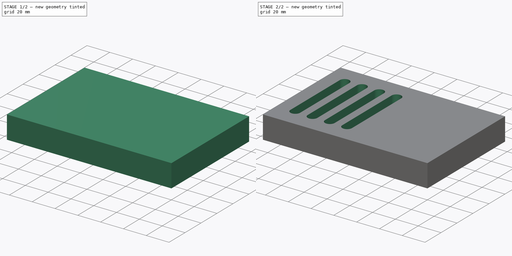
[diagram: build sequence overview — one tinted view per stage of 2, left to right]
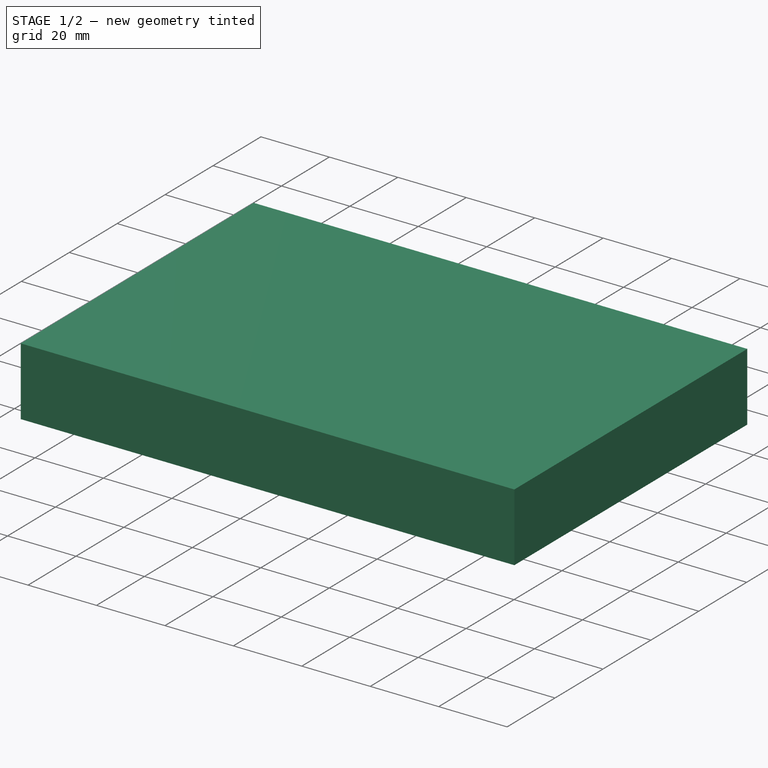
[diagram: stage 1 of 2 — iso view after this stage's code; geometry added in this stage tinted green]
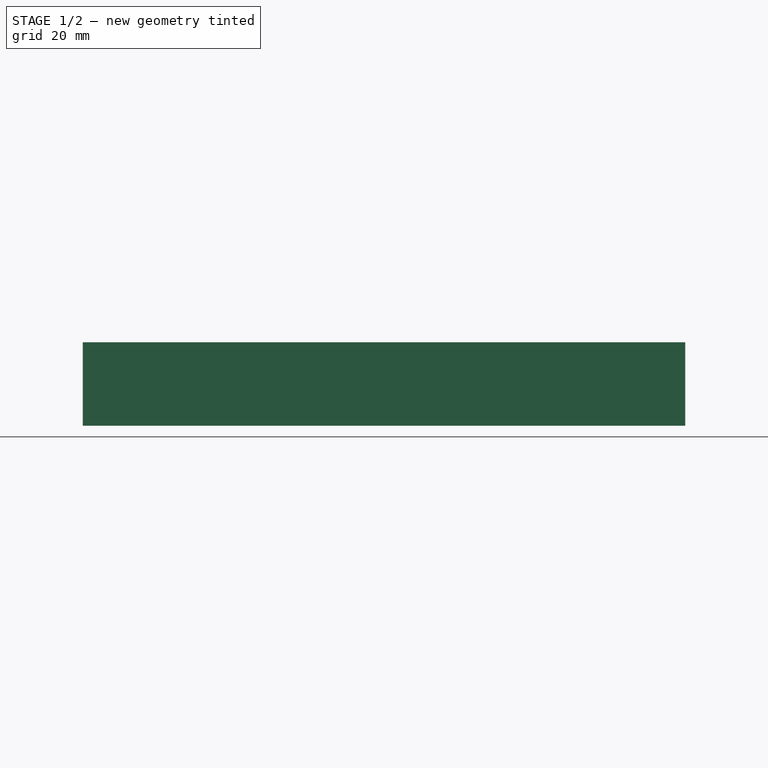
[diagram: stage 1 of 2 — front view after this stage's code; geometry added in this stage tinted green]
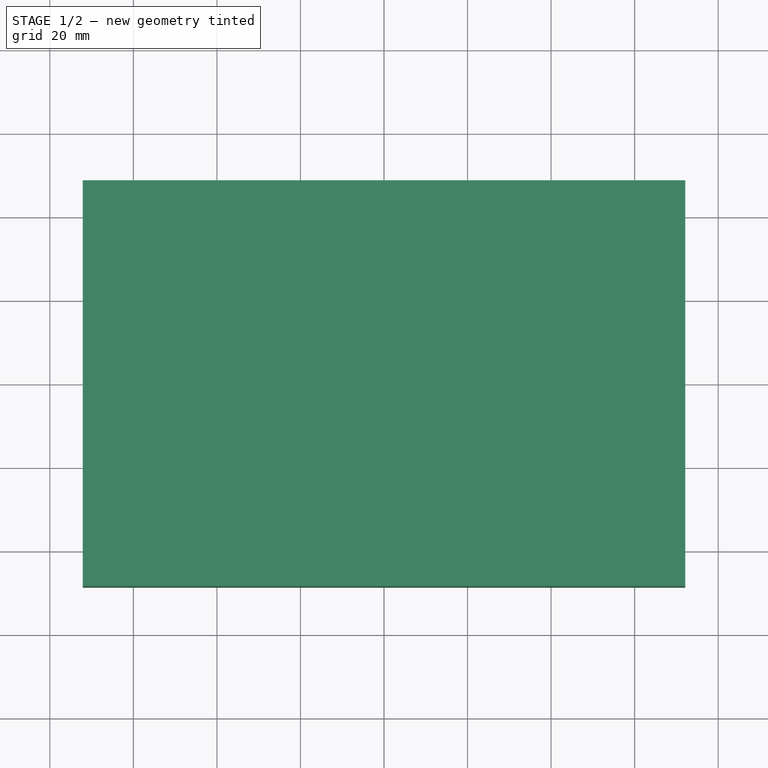
[diagram: stage 1 of 2 — top view after this stage's code; geometry added in this stage tinted green]
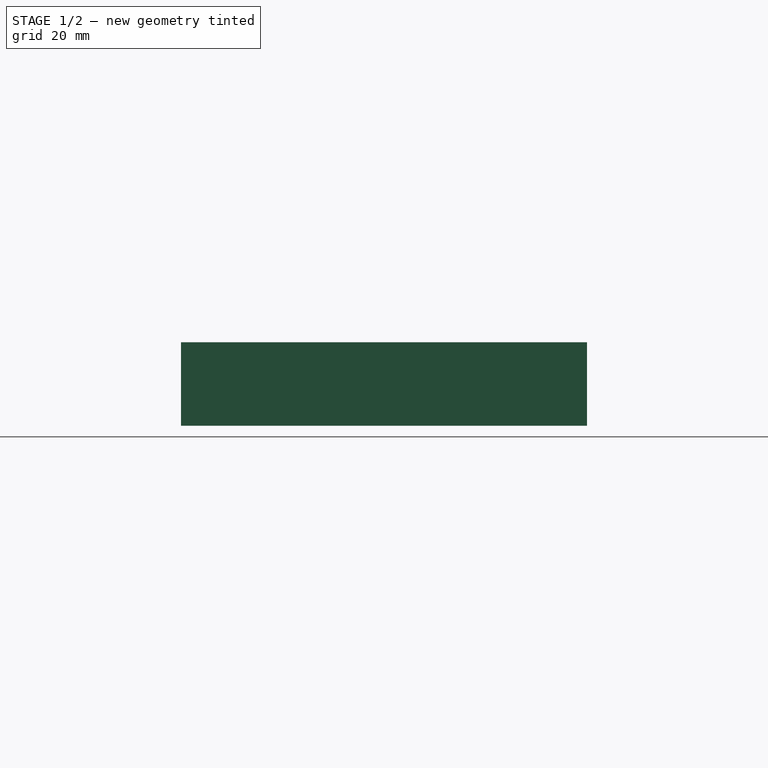
[diagram: stage 1 of 2 — right view after this stage's code; geometry added in this stage tinted green]
FCSTD DOCUMENT  (FreeCAD 0.20R29177 (Git))
Label: t5_t7_docklingstation
License: All rights reserved
LicenseURL: http://en.wikipedia.org/wiki/All_rights_reserved
objects: Sketcher::SketchObject×2, PartDesign::Pad×1, PartDesign::Pocket×1, PartDesign::Body×1
note: 7 computed .brp shape members not serialized (recipe doc carries the construction recipe); baked Part::Feature solids carry a one-line shape summary decoded from their .brp

FEATURE [Sketcher::SketchObject] Sketch
  FullyConstrained = false
  MapMode = 5
  Support = -> [XY_Plane]
  sketch-geometry (4):
    g0: LineSegment StartX=-72.1271 StartY=48.6104 StartZ=0 EndX=72.1271 EndY=48.6104 EndZ=0
    g1: LineSegment StartX=72.1271 StartY=48.6104 StartZ=0 EndX=72.1271 EndY=-48.6104 EndZ=0
    g2: LineSegment StartX=72.1271 StartY=-48.6104 StartZ=0 EndX=-72.1271 EndY=-48.6104 EndZ=0
    g3: LineSegment StartX=-72.1271 StartY=-48.6104 StartZ=0 EndX=-72.1271 EndY=48.6104 EndZ=0
  constraints (8):
    c: Coincident(g0,g1)
    c: Coincident(g1,g2)
    c: Coincident(g2,g3)
    c: Coincident(g3,g0)
    c: Horizontal(g2)
    c: Vertical(g3)
    c: Symmetric(g0,g0,g-2)
    c: Symmetric(g0,g1,g-1)
FEATURE [Sketcher::SketchObject] Sketch001
  AttachmentOffset = pos=(0,0,20) rot=(0,0,1;0rad)
  ExternalGeometry = -> [Sketch]
  FullyConstrained = false
  MapMode = 5
  Placement = pos=(0,0,20) rot=(0,0,1;0rad)
  Support = -> [XY_Plane]
  sketch-geometry (30):
    g0: ArcOfCircle CenterX=-10.7009 CenterY=30.875 CenterZ=0 NormalX=0 NormalY=0 NormalZ=1 AngleXU=0 Radius=4.25 StartAngle=1e-16 EndAngle=3.14159
    g1: ArcOfCircle CenterX=-10.7009 CenterY=-30.875 CenterZ=0 NormalX=0 NormalY=0 NormalZ=1 AngleXU=0 Radius=4.25 StartAngle=3.14159 EndAngle=6.28319
    g2: LineSegment StartX=-14.9509 StartY=30.875 StartZ=0 EndX=-14.9509 EndY=-30.875 EndZ=0
    g3: LineSegment StartX=-6.45088 StartY=-30.875 StartZ=0 EndX=-6.45088 EndY=30.875 EndZ=0
    g4: ArcOfCircle CenterX=-25.8509 CenterY=30.875 CenterZ=0 NormalX=0 NormalY=0 NormalZ=1 AngleXU=0 Radius=4.25 StartAngle=0 EndAngle=3.14159
    g5: ArcOfCircle CenterX=-25.8509 CenterY=-30.875 CenterZ=0 NormalX=0 NormalY=0 NormalZ=1 AngleXU=0 Radius=4.25 StartAngle=3.14159 EndAngle=6.28319
    g6: LineSegment StartX=-30.1009 StartY=30.875 StartZ=0 EndX=-30.1009 EndY=-30.875 EndZ=0
    g7: LineSegment StartX=-21.6009 StartY=-30.875 StartZ=0 EndX=-21.6009 EndY=30.875 EndZ=0
    g8: ArcOfCircle CenterX=-41.0009 CenterY=30.875 CenterZ=0 NormalX=0 NormalY=0 NormalZ=1 AngleXU=0 Radius=4.25 StartAngle=0 EndAngle=3.14159
    g9: ArcOfCircle CenterX=-41.0009 CenterY=-30.875 CenterZ=0 NormalX=0 NormalY=0 NormalZ=1 AngleXU=0 Radius=4.25 StartAngle=3.14159 EndAngle=6.28319
    g10: LineSegment StartX=-45.2509 StartY=30.875 StartZ=0 EndX=-45.2509 EndY=-30.875 EndZ=0
    g11: LineSegment StartX=-36.7509 StartY=-30.875 StartZ=0 EndX=-36.7509 EndY=30.875 EndZ=0
    g12: ArcOfCircle CenterX=-56.1509 CenterY=30.875 CenterZ=0 NormalX=0 NormalY=0 NormalZ=1 AngleXU=0 Radius=4.25 StartAngle=0 EndAngle=3.14159
    g13: ArcOfCircle CenterX=-56.1509 CenterY=-30.875 CenterZ=0 NormalX=0 NormalY=0 NormalZ=1 AngleXU=0 Radius=4.25 StartAngle=3.14159 EndAngle=6.28319
    g14: LineSegment StartX=-60.4009 StartY=30.875 StartZ=0 EndX=-60.4009 EndY=-30.875 EndZ=0
    g15: LineSegment StartX=-51.9009 StartY=-30.875 StartZ=0 EndX=-51.9009 EndY=30.875 EndZ=0
    g16: LineSegment StartX=-6.45088 StartY=30.875 StartZ=0 EndX=-14.9509 EndY=30.875 EndZ=0
    g17: LineSegment StartX=-21.6009 StartY=30.875 StartZ=0 EndX=-30.1009 EndY=30.875 EndZ=0
    g18: LineSegment StartX=-36.7509 StartY=30.875 StartZ=0 EndX=-45.2509 EndY=30.875 EndZ=0
    g19: LineSegment StartX=-51.9009 StartY=30.875 StartZ=0 EndX=-60.4009 EndY=30.875 EndZ=0
    g20: LineSegment StartX=-25.8509 StartY=30.875 StartZ=0 EndX=-25.8509 EndY=48.6104 EndZ=0
    g21: LineSegment StartX=-41.0009 StartY=30.875 StartZ=0 EndX=-41.0009 EndY=48.6104 EndZ=0
    g22: LineSegment StartX=-56.1509 StartY=30.875 StartZ=0 EndX=-56.1509 EndY=48.6104 EndZ=0
    g23: LineSegment StartX=-51.9009 StartY=30.875 StartZ=0 EndX=-45.2509 EndY=30.875 EndZ=0
    g24: LineSegment StartX=-36.7509 StartY=30.875 StartZ=0 EndX=-30.1009 EndY=30.875 EndZ=0
    g25: LineSegment StartX=-21.6009 StartY=30.875 StartZ=0 EndX=-14.9509 EndY=30.875 EndZ=0
    g26: LineSegment StartX=-10.7009 StartY=-30.875 StartZ=0 EndX=-10.7009 EndY=-48.6104 EndZ=0
    g27: LineSegment StartX=-10.7009 StartY=30.875 StartZ=0 EndX=-10.7009 EndY=48.6104 EndZ=0
    g28: GeomPoint X=-10.7009 Y=30.875 Z=0
    g29: GeomPoint X=-10.7009 Y=-26.625 Z=0
  constraints (71):
    c: Tangent(g0,g2) = -1.5708
    c: Tangent(g2,g1) = -1.5708
    c: Tangent(g1,g3) = -1.5708
    c: Tangent(g3,g0) = -1.5708
    c: Equal(g0,g1)
    c: Vertical(g2)
    c: DistanceX(g0,g0) = 8.5
    c: Tangent(g4,g6) = -1.5708
    c: Tangent(g6,g5) = -1.5708
    c: Tangent(g5,g7) = -1.5708
    c: Tangent(g7,g4) = -1.5708
    c: Equal(g4,g5)
    c: Vertical(g6)
    c: Tangent(g8,g10) = -1.5708
    c: Tangent(g10,g9) = -1.5708
    c: Tangent(g9,g11) = -1.5708
    c: Tangent(g11,g8) = -1.5708
    c: Equal(g8,g9)
    c: Vertical(g10)
    c: Tangent(g12,g14) = -1.5708
    c: Tangent(g14,g13) = -1.5708
    c: Tangent(g13,g15) = -1.5708
    c: Tangent(g15,g12) = -1.5708
    c: Equal(g12,g13)
    c: Vertical(g14)
    c: Coincident(g16,g0)
    c: Coincident(g16,g0)
    c: Coincident(g17,g4)
    c: Coincident(g17,g4)
    c: Coincident(g18,g8)
    c: Coincident(g18,g8)
    c: Coincident(g19,g12)
    c: Coincident(g19,g12)
    c: Equal(g16,g17)
    c: Equal(g17,g18)
    c: Equal(g18,g19)
    c: Coincident(g20,g4)
    c: PointOnObject(g20,g-3)
    c: Vertical(g20)
    c: Coincident(g21,g8)
    c: Vertical(g21)
    c: Coincident(g22,g12)
    c: PointOnObject(g22,g-3)
    c: Vertical(g22)
    c: Equal(g20,g21)
    c: Equal(g21,g22)
    c: Equal(g7,g11)
    c: Equal(g11,g15)
    c: Equal(g15,g3)
    c: Coincident(g23,g12)
    c: Coincident(g23,g8)
    c: Horizontal(g23)
    c: Coincident(g24,g8)
    c: Coincident(g24,g4)
    c: Coincident(g25,g4)
    c: Coincident(g25,g0)
    c: Equal(g23,g24)
    c: Equal(g24,g25)
    c: DistanceX(g25,g25) = 6.65
    c: Coincident(g26,g1)
    c: PointOnObject(g26,g-4)
    c: Vertical(g26)
    c: Coincident(g27,g0)
    c: PointOnObject(g27,g-3)
    c: Vertical(g27)
    c: Equal(g27,g26)
    c: Horizontal(g25)
    c: PointOnObject(g29,g1)
    c: PointOnObject(g29,g26)
    c: DistanceY(g29,g28) = 57.5
    c: Coincident(g28,g0)
FEATURE [PartDesign::Pad] Pad
  Direction = (0,0,1)
  Length = 20
  Length2 = 10
  Profile = -> Sketch
  ReferenceAxis = -> Sketch [N_Axis]
  Refine = true
  Type = 0
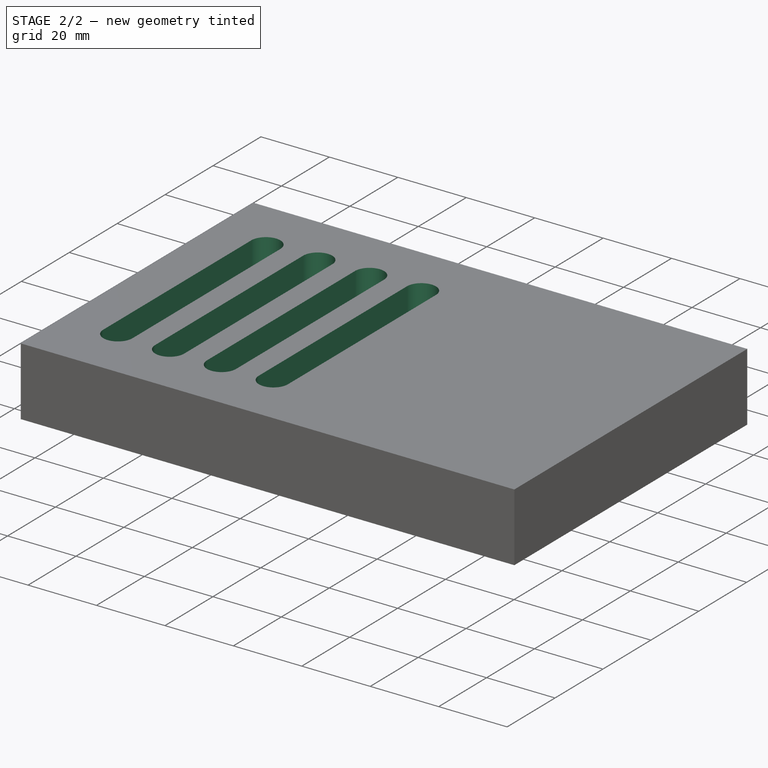
[diagram: stage 2 of 2 — iso view after this stage's code; geometry added in this stage tinted green]
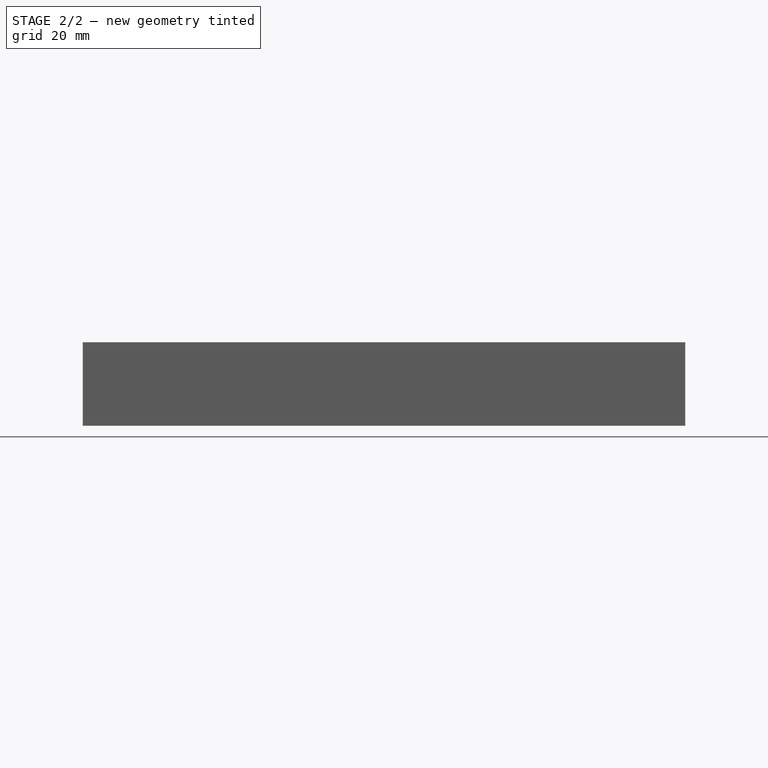
[diagram: stage 2 of 2 — front view after this stage's code; geometry added in this stage tinted green]
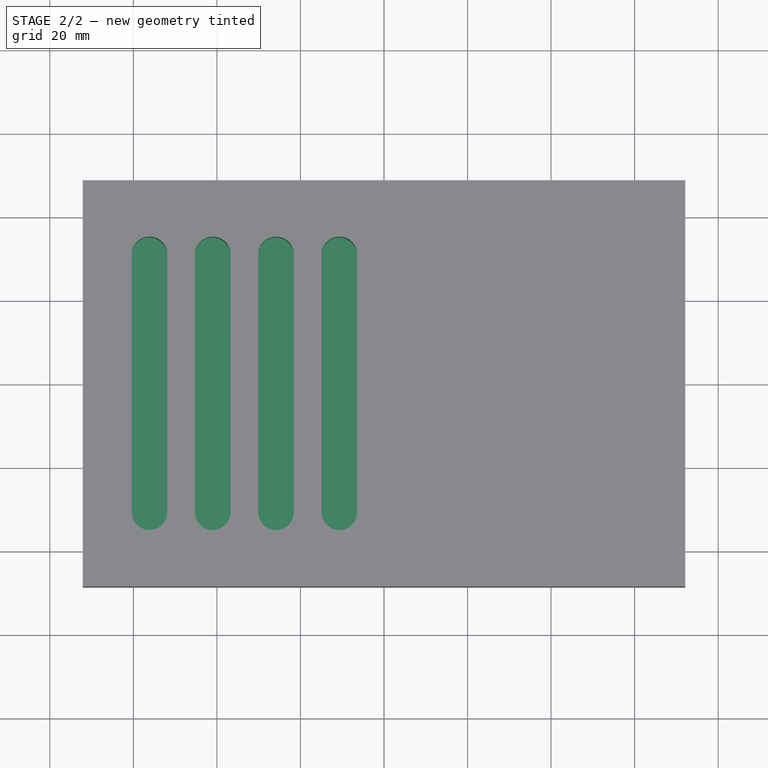
[diagram: stage 2 of 2 — top view after this stage's code; geometry added in this stage tinted green]
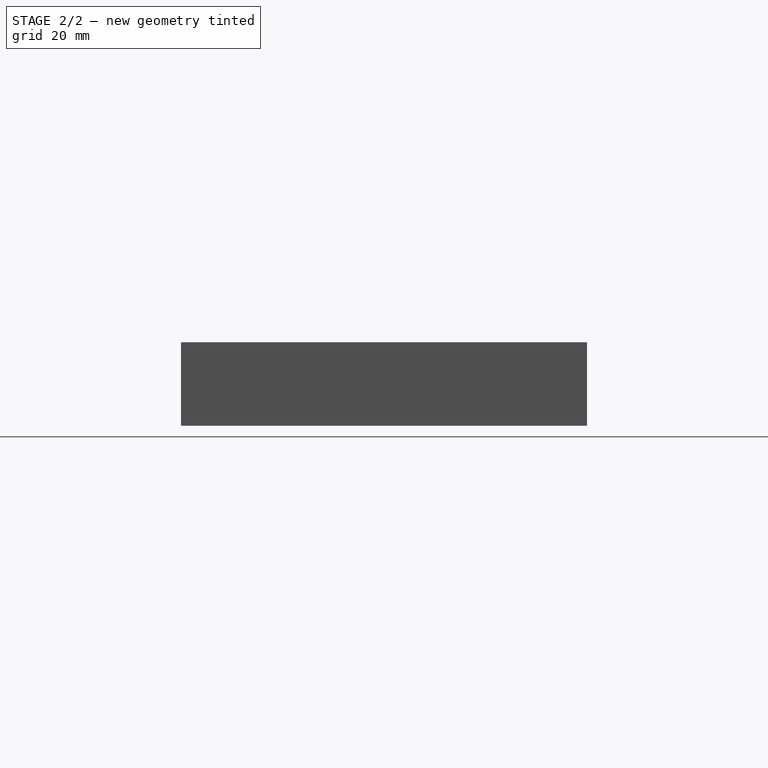
[diagram: stage 2 of 2 — right view after this stage's code; geometry added in this stage tinted green]
FEATURE [PartDesign::Pocket] Pocket
  BaseFeature = -> Pad
  Direction = (0,0,-1)
  Length = 15
  Length2 = 5
  Profile = -> Sketch001
  ReferenceAxis = -> Sketch001 [N_Axis]
  Refine = true
  Type = 0
FEATURE [PartDesign::Body] Body
  Group = -> [Sketch,Sketch001,Pad,Pocket]
  Origin = -> Origin
  Tip = -> Pocket
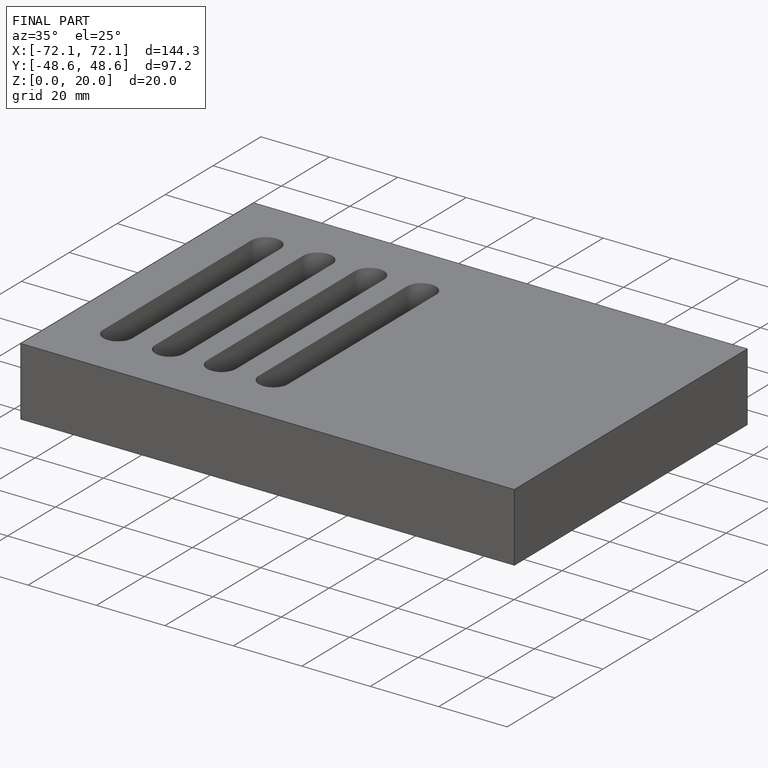
[diagram: finished part — iso view with bounding-box wireframe]
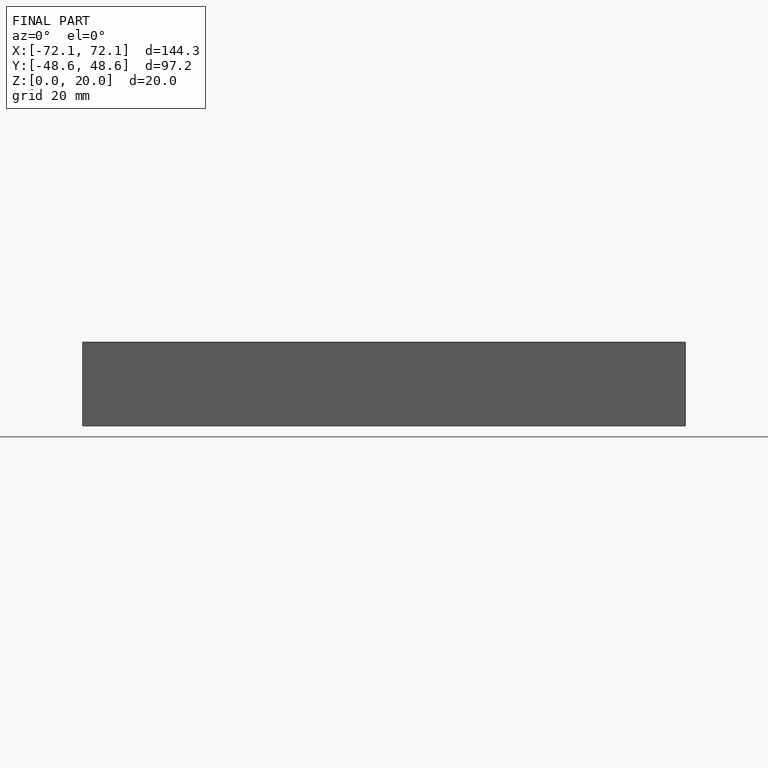
[diagram: finished part — front view with bounding-box wireframe]
